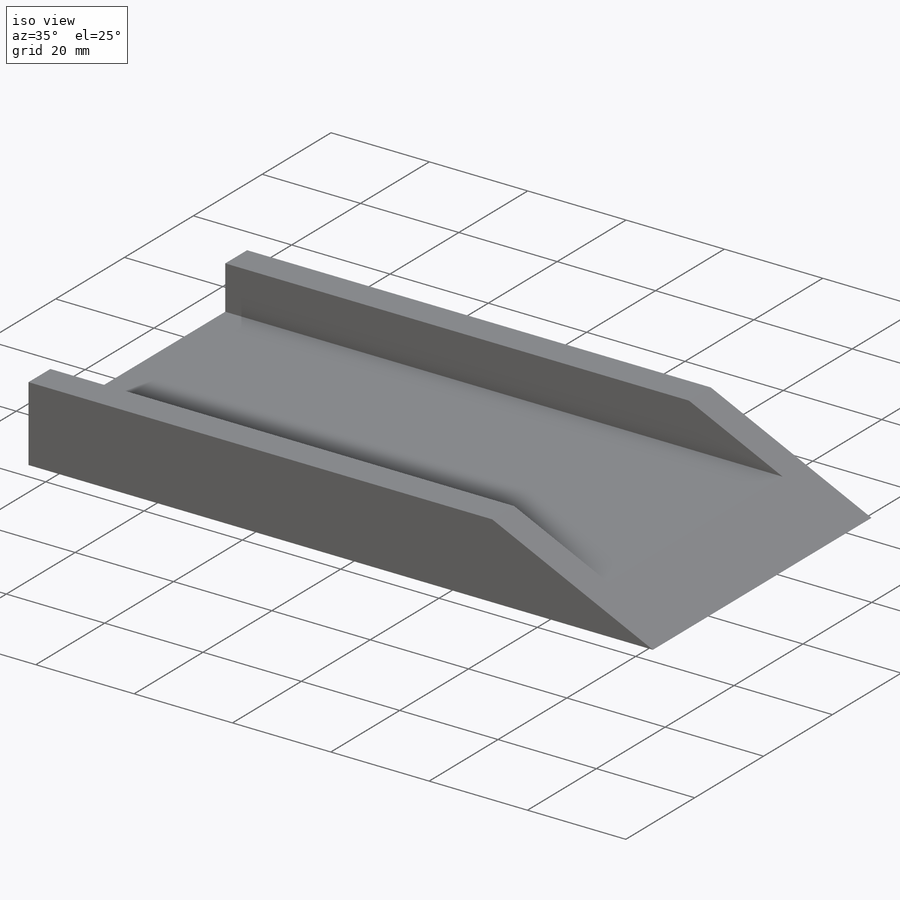
[diagram: iso view]
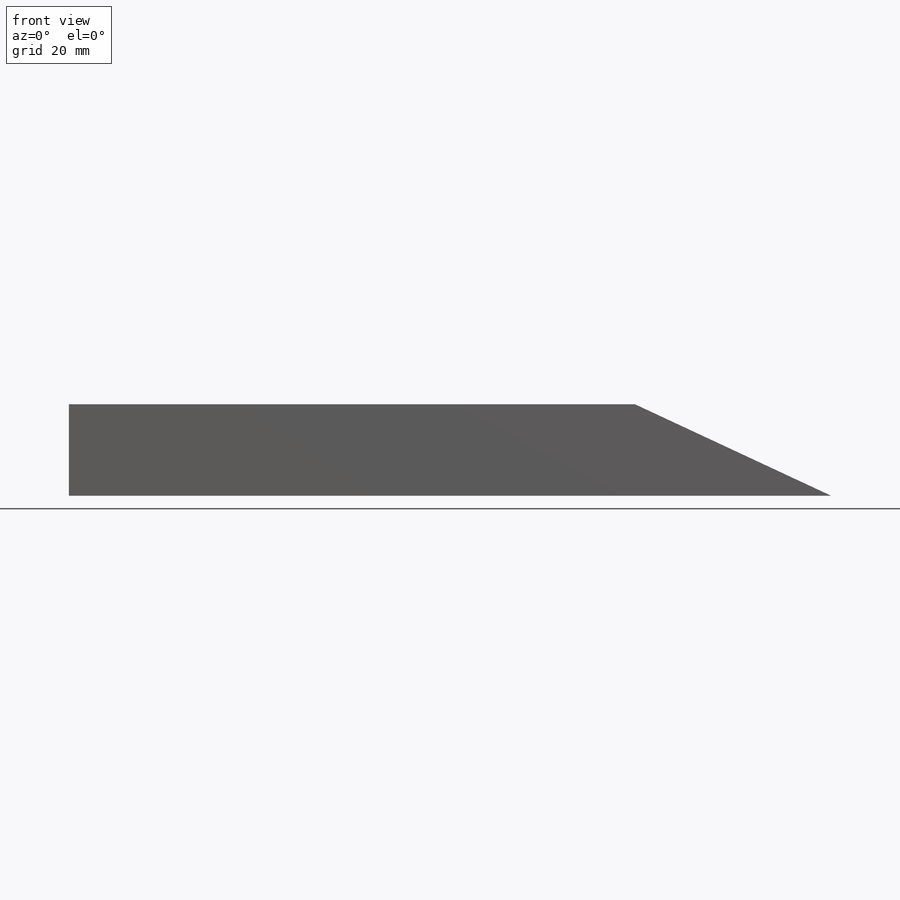
[diagram: front view]
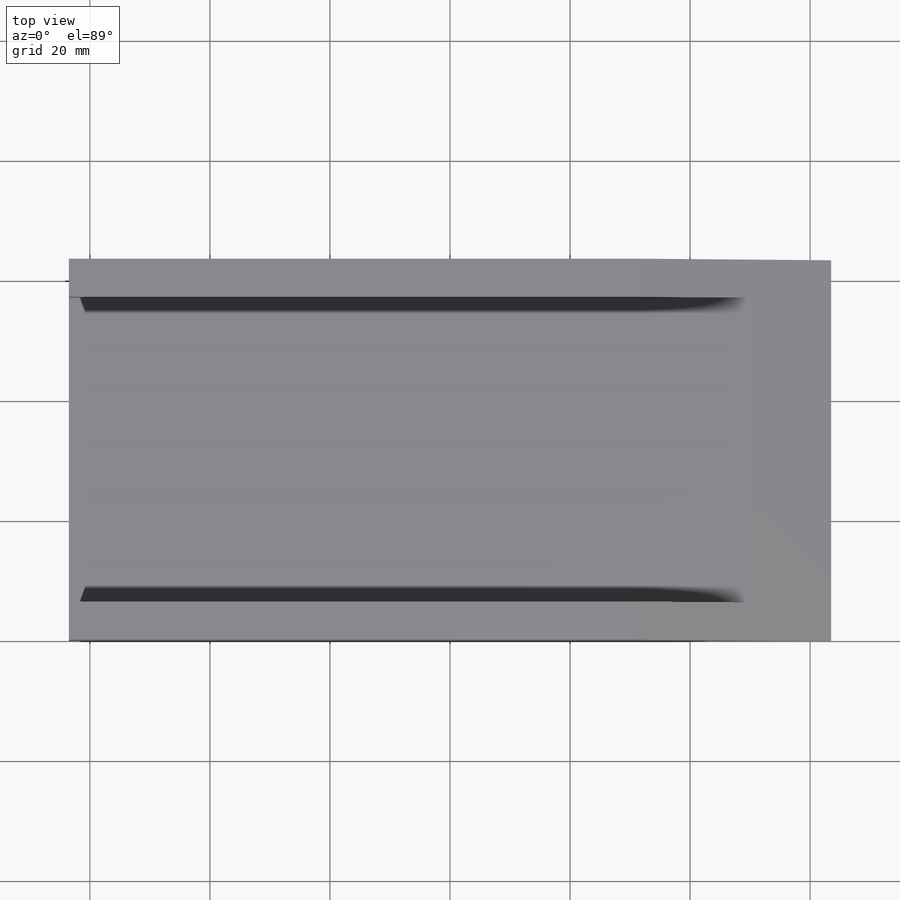
[diagram: top view]
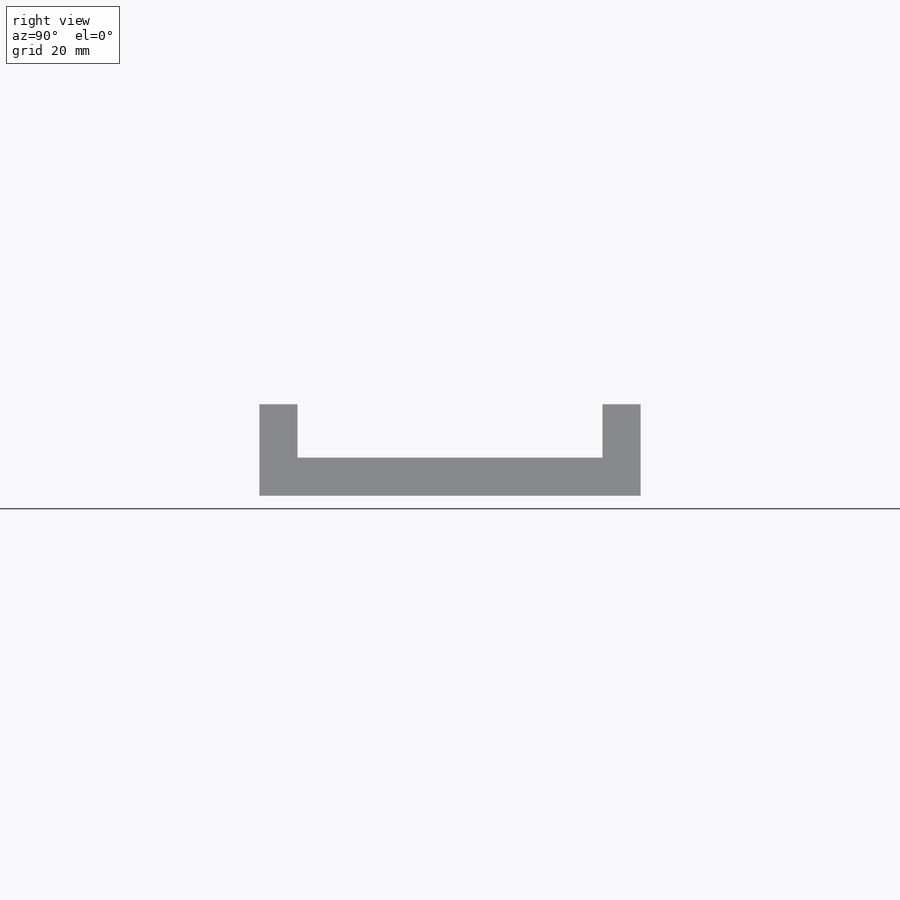
[diagram: right view]
SOLIDWORKS PART (.sldprt)
format: sldprt  version: not decoded by parser v0  size: 451,072 bytes
history: native  units: mm
features: sketch x3, extrude x2, material x1, cut_extrude x1 (+12 scaffold rows collapsed)
feature tree (19):
  scaffold x12  (default folders/planes/origin — collapsed)
  material  "Maple"
  sketch  "Sketch1"  dims[c1.D1=~102.514523mm c2.D1=3.97deg c2.D2=~17.433821mm c3.D2=~104.711655deg c3.D1=6.35mm c4.D2=127.0mm c4.D3=3.175mm c5.D3=45.0deg c5.D4=~4.155897mm c6.D4=45.0deg c6.D3=~12.475533mm c7.D3=45.0deg]
  extrude  "Boss-Extrude1"  Depth=63.5mm
  sketch  "Sketch2"  dims[D1=6.35mm D2=6.35mm]
  extrude  "Boss-Extrude2"  Depth=8.89mm
  sketch  "Sketch3"  dims[c1.D1=~15.729985mm c2.D1=~135.906417deg c3.D1=~21.901827mm c4.D1=25.0deg c4.D2=25.4mm]
  cut_extrude  "Cut-Extrude1"  [1 undecoded]
decode coverage: 5 of 6 modeling features carry decoded parameters
note: ~ marks probable driven/reference dimensions
note: 1 parameter value undecoded
note: suppression state not decoded; provenance and decode notes live in map.json
